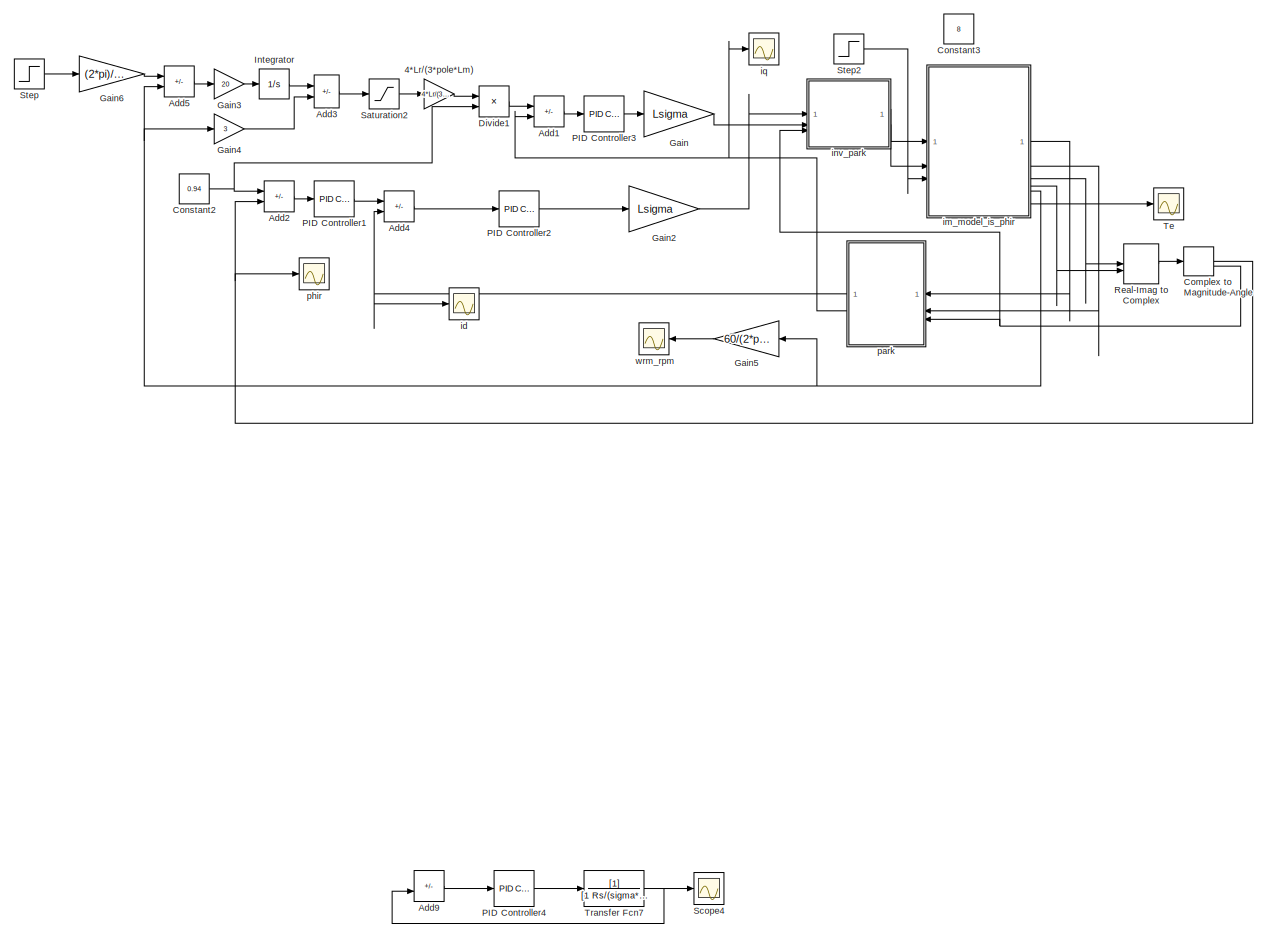
[diagram: root canvas - part 1/1, most of the canvas]
MODEL slx_88a6581c1cbe
KIND model
CONFIG AbsTol = auto
CONFIG EnableMultiTasking = off
CONFIG FixedStep = 0.001
CONFIG MaxStep = auto
CONFIG MinStep = auto
CONFIG RelTol = 1e-3
CONFIG SampleTimeConstraint = Unconstrained
CONFIG SolverName = VariableStepAuto
CONFIG StartTime = 0.0
CONFIG StopTime = 4
BLOCK [Gain] 4*Lr//(3*pole*Lm)
  Gain = 4*Lr/(3*pole*Lm)
  NameLocation = top
BLOCK [Sum] Add1
  IconShape = rectangular
  Inputs = +-
BLOCK [Sum] Add2
  IconShape = rectangular
  Inputs = +-
BLOCK [Sum] Add3
  IconShape = rectangular
  Inputs = +-
BLOCK [Sum] Add4
  IconShape = rectangular
  Inputs = +-
BLOCK [Sum] Add5
  IconShape = rectangular
  Inputs = +-
BLOCK [Sum] Add9
  IconShape = rectangular
  Inputs = +-
BLOCK [ComplexToMagnitudeAngle] Complex to Magnitude-Angle
BLOCK [Constant] Constant2
  Value = 0.94
BLOCK [Constant] Constant3
  Value = 8
BLOCK [Product] Divide1
  Inputs = */
BLOCK [Gain] Gain
  Gain = Lsigma
BLOCK [Gain] Gain2
  Gain = Lsigma
BLOCK [Gain] Gain3
  Gain = 20
BLOCK [Gain] Gain4
  Gain = 3
BLOCK [Gain] Gain5
  Gain = 60/(2*pi)
BLOCK [Gain] Gain6
  Gain = (2*pi)/60
  NameLocation = top
BLOCK [Integrator] Integrator
BLOCK [Reference] PID Controller1  REF=slpidlib/PID Controller
  LibrarySourceBlock = simulink/Continuous/PID Controller
  SourceBlock = slpidlib/PID Controller
  SourceType = PID 1dof
BLOCK [Reference] PID Controller2  REF=slpidlib/PID Controller
  LibrarySourceBlock = simulink/Continuous/PID Controller
  SourceBlock = slpidlib/PID Controller
  SourceType = PID 1dof
BLOCK [Reference] PID Controller3  REF=slpidlib/PID Controller
  LibrarySourceBlock = simulink/Continuous/PID Controller
  SourceBlock = slpidlib/PID Controller
  SourceType = PID 1dof
BLOCK [Reference] PID Controller4  REF=slpidlib/PID Controller
  LibrarySourceBlock = simulink/Continuous/PID Controller
  SourceBlock = slpidlib/PID Controller
  SourceType = PID 1dof
BLOCK [RealImagToComplex] Real-Imag to Complex
BLOCK [Saturate] Saturation2
  LowerLimit = -24
  UpperLimit = 24
BLOCK [Scope] Scope4
  Floating = off
  NumInputPorts = 1
  ScopeSpecificationString = Simulink.scopes.TimeScopeBlockCfg('CurrentConfiguration', extmgr.ConfigurationSet(extmgr.Configuration('Core','General UI',true),extmgr.Configuration('Core','Source UI',true),extmgr.Configuration('Sources','WiredSimulink',true,'DataLoggingVariableName','ScopeData2'),extmgr.Configuration('Visuals','Time Domain',true,'SerializedDisplays',{struct('MinYLimReal','-1.68781','MaxYLimReal','15.19027','YLa...<+1376ch>
BLOCK [Step] Step
  After = 1000
  SampleTime = 0
  Time = 0
BLOCK [Step] Step2
  After = 8
  SampleTime = 0
  Time = 2
BLOCK [Scope] Te
  Floating = off
  NumInputPorts = 1
  ScopeSpecificationString = Simulink.scopes.TimeScopeBlockCfg('CurrentConfiguration', extmgr.ConfigurationSet(extmgr.Configuration('Core','General UI',true,'FigureColor',[1 1 1]),extmgr.Configuration('Core','Source UI',true),extmgr.Configuration('Sources','WiredSimulink',true,'DataLoggingVariableName','ScopeData1'),extmgr.Configuration('Visuals','Time Domain',true,'SerializedDisplays',{struct('MinYLimReal','-3.53995','MaxYLi...<+1577ch>
BLOCK [TransferFcn] Transfer Fcn7
  Denominator = [1 Rs/(sigma*Ls)-(1-sigma)/(sigma*Tr)]
BLOCK [Scope] id
  Floating = off
  NumInputPorts = 1
  ScopeSpecificationString = Simulink.scopes.TimeScopeBlockCfg('CurrentConfiguration', extmgr.ConfigurationSet(extmgr.Configuration('Core','General UI',true,'FigureColor',[1 1 1]),extmgr.Configuration('Core','Source UI',true),extmgr.Configuration('Sources','WiredSimulink',true,'DataLoggingVariableName','ScopeData4'),extmgr.Configuration('Visuals','Time Domain',true,'SerializedDisplays',{struct('MinYLimReal','-1.98517','MaxYLi...<+1542ch>
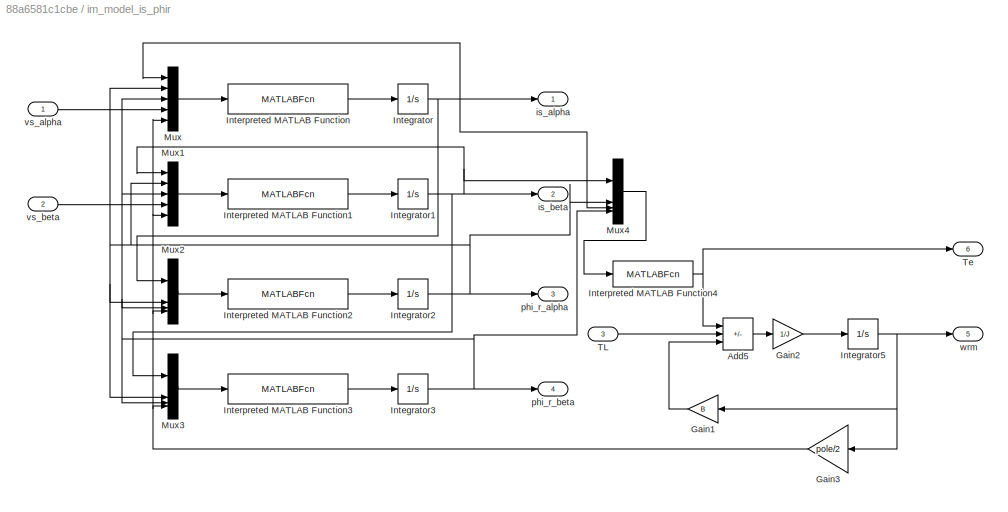
BLOCK [SubSystem] im_model_is_phir
BLOCK [Sum] im_model_is_phir/Add5
  IconShape = rectangular
  Inputs = +--
BLOCK [Gain] im_model_is_phir/Gain1
  Gain = B
BLOCK [Gain] im_model_is_phir/Gain2
  Gain = 1/J
BLOCK [Gain] im_model_is_phir/Gain3
  Gain = pole/2
BLOCK [Integrator] im_model_is_phir/Integrator
BLOCK [Integrator] im_model_is_phir/Integrator1
BLOCK [Integrator] im_model_is_phir/Integrator2
BLOCK [Integrator] im_model_is_phir/Integrator3
BLOCK [Integrator] im_model_is_phir/Integrator5
BLOCK [MATLABFcn] im_model_is_phir/Interpreted MATLAB Function
  MATLABFcn = K1*u(1)+K2*u(2)+K3*u(5)*u(3)+K4*u(4)
BLOCK [MATLABFcn] im_model_is_phir/Interpreted MATLAB Function1
  MATLABFcn = K1*u(1)-K3*u(5)*u(2)+K2*u(3)+K4*u(4)
BLOCK [MATLABFcn] im_model_is_phir/Interpreted MATLAB Function2
  MATLABFcn = K5*u(1)+K6*u(2)-u(4)*u(3)
BLOCK [MATLABFcn] im_model_is_phir/Interpreted MATLAB Function3
  MATLABFcn = K5*u(1)+u(4)*u(2)+K6*u(3)
BLOCK [MATLABFcn] im_model_is_phir/Interpreted MATLAB Function4
  MATLABFcn = (u(1)*u(2)-u(3)*u(4))*3*pole*Lm/(4*Lr)
BLOCK [Mux] im_model_is_phir/Mux
  DisplayOption = bar
  Inputs = 5
BLOCK [Mux] im_model_is_phir/Mux1
  DisplayOption = bar
  Inputs = 5
BLOCK [Mux] im_model_is_phir/Mux2
  DisplayOption = bar
BLOCK [Mux] im_model_is_phir/Mux3
  DisplayOption = bar
BLOCK [Mux] im_model_is_phir/Mux4
  DisplayOption = bar
BLOCK [Inport] im_model_is_phir/TL
  Port = 3
BLOCK [Outport] im_model_is_phir/Te
  Port = 6
BLOCK [Outport] im_model_is_phir/is_alpha
BLOCK [Outport] im_model_is_phir/is_beta
  Port = 2
BLOCK [Outport] im_model_is_phir/phi_r_alpha
  Port = 3
BLOCK [Outport] im_model_is_phir/phi_r_beta
  Port = 4
BLOCK [Inport] im_model_is_phir/vs_alpha
BLOCK [Inport] im_model_is_phir/vs_beta
  Port = 2
BLOCK [Outport] im_model_is_phir/wrm
  Port = 5
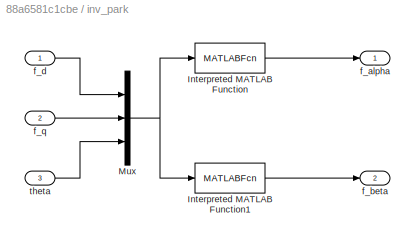
BLOCK [SubSystem] inv_park
BLOCK [MATLABFcn] inv_park/Interpreted MATLAB Function
  MATLABFcn = cos(u(3))*u(1)-sin(u(3))*u(2)
BLOCK [MATLABFcn] inv_park/Interpreted MATLAB Function1
  MATLABFcn = sin(u(3))*u(1)+cos(u(3))*u(2)
BLOCK [Mux] inv_park/Mux
  DisplayOption = bar
  Inputs = 3
BLOCK [Outport] inv_park/f_alpha
BLOCK [Outport] inv_park/f_beta
  Port = 2
BLOCK [Inport] inv_park/f_d
BLOCK [Inport] inv_park/f_q
  Port = 2
BLOCK [Inport] inv_park/theta
  Port = 3
BLOCK [Scope] iq
  Floating = off
  NumInputPorts = 1
  ScopeSpecificationString = Simulink.scopes.TimeScopeBlockCfg('CurrentConfiguration', extmgr.ConfigurationSet(extmgr.Configuration('Core','General UI',true,'FigureColor',[1 1 1]),extmgr.Configuration('Core','Source UI',true),extmgr.Configuration('Sources','WiredSimulink',true,'DataLoggingVariableName','ScopeData1'),extmgr.Configuration('Visuals','Time Domain',true,'SerializedDisplays',{struct('MinYLimReal','-5.69164','MaxYLi...<+1565ch>
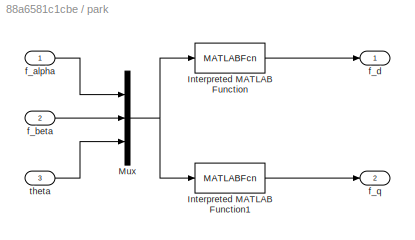
BLOCK [SubSystem] park
BLOCK [MATLABFcn] park/Interpreted MATLAB Function
  MATLABFcn = cos(u(3))*u(1)+sin(u(3))*u(2)
BLOCK [MATLABFcn] park/Interpreted MATLAB Function1
  MATLABFcn = -sin(u(3))*u(1)+cos(u(3))*u(2)
BLOCK [Mux] park/Mux
  DisplayOption = bar
  Inputs = 3
BLOCK [Inport] park/f_alpha
BLOCK [Inport] park/f_beta
  Port = 2
BLOCK [Outport] park/f_d
BLOCK [Outport] park/f_q
  Port = 2
BLOCK [Inport] park/theta
  Port = 3
BLOCK [Scope] phir
  Floating = off
  NumInputPorts = 1
  ScopeSpecificationString = Simulink.scopes.TimeScopeBlockCfg('CurrentConfiguration', extmgr.ConfigurationSet(extmgr.Configuration('Core','General UI',true,'FigureColor',[1 1 1]),extmgr.Configuration('Core','Source UI',true),extmgr.Configuration('Sources','WiredSimulink',true,'DataLoggingVariableName','ScopeData2'),extmgr.Configuration('Visuals','Time Domain',true,'SerializedDisplays',{struct('MinYLimReal','-0.11749','MaxYLi...<+1564ch>
BLOCK [Scope] wrm_rpm
  Floating = off
  NameLocation = top
  NumInputPorts = 1
  ScopeSpecificationString = Simulink.scopes.TimeScopeBlockCfg('CurrentConfiguration', extmgr.ConfigurationSet(extmgr.Configuration('Core','General UI',true,'FigureColor',[1 1 1]),extmgr.Configuration('Core','Source UI',true),extmgr.Configuration('Sources','WiredSimulink',true),extmgr.Configuration('Visuals','Time Domain',true,'SerializedDisplays',{struct('MinYLimReal','969.39804','MaxYLimReal','1022.35507','YLabelReal','','M...<+1536ch>
LINE 4*Lr//(3*pole*Lm):1 -> Divide1:1
LINE Add1:1 -> PID Controller3:1
LINE Add2:1 -> PID Controller1:1
LINE Add3:1 -> Saturation2:1
LINE Add4:1 -> PID Controller2:1
LINE Add5:1 -> Gain3:1
LINE Add9:1 -> PID Controller4:1
NET Complex to Magnitude-Angle:1 -> Add2:2, phir:1
NET Complex to Magnitude-Angle:2 -> inv_park:3, park:3
NET Constant2:1 -> Add2:1, Divide1:2
LINE Divide1:1 -> Add1:1
LINE Gain2:1 -> inv_park:1
LINE Gain3:1 -> Integrator:1
LINE Gain4:1 -> Add3:2
LINE Gain5:1 -> wrm_rpm:1
LINE Gain6:1 -> Add5:1
LINE Gain:1 -> inv_park:2
LINE Integrator:1 -> Add3:1
LINE PID Controller1:1 -> Add4:1
LINE PID Controller2:1 -> Gain2:1
LINE PID Controller3:1 -> Gain:1
LINE PID Controller4:1 -> Transfer Fcn7:1
LINE Real-Imag to Complex:1 -> Complex to Magnitude-Angle:1
LINE Saturation2:1 -> 4*Lr//(3*pole*Lm):1
LINE Step2:1 -> im_model_is_phir:3
LINE Step:1 -> Gain6:1
NET Transfer Fcn7:1 -> Add9:2, Scope4:1
LINE im_model_is_phir/Add5:1 -> im_model_is_phir/Gain2:1
LINE im_model_is_phir/Gain1:1 -> im_model_is_phir/Add5:3
LINE im_model_is_phir/Gain2:1 -> im_model_is_phir/Integrator5:1
NET im_model_is_phir/Gain3:1 -> im_model_is_phir/Mux1:5, im_model_is_phir/Mux2:4, im_model_is_phir/Mux3:4, im_model_is_phir/Mux:5
NET im_model_is_phir/Integrator1:1 -> im_model_is_phir/Mux1:1, im_model_is_phir/Mux3:1, im_model_is_phir/Mux4:1, im_model_is_phir/is_beta:1
NET im_model_is_phir/Integrator2:1 -> im_model_is_phir/Mux1:2, im_model_is_phir/Mux2:2, im_model_is_phir/Mux3:2, im_model_is_phir/Mux4:2, im_model_is_phir/Mux:2, im_model_is_phir/phi_r_alpha:1
NET im_model_is_phir/Integrator3:1 -> im_model_is_phir/Mux1:3, im_model_is_phir/Mux2:3, im_model_is_phir/Mux3:3, im_model_is_phir/Mux4:4, im_model_is_phir/Mux:3, im_model_is_phir/phi_r_beta:1
NET im_model_is_phir/Integrator5:1 -> im_model_is_phir/Gain1:1, im_model_is_phir/Gain3:1, im_model_is_phir/wrm:1
NET im_model_is_phir/Integrator:1 -> im_model_is_phir/Mux2:1, im_model_is_phir/Mux4:3, im_model_is_phir/Mux:1, im_model_is_phir/is_alpha:1
LINE im_model_is_phir/Interpreted MATLAB Function1:1 -> im_model_is_phir/Integrator1:1
LINE im_model_is_phir/Interpreted MATLAB Function2:1 -> im_model_is_phir/Integrator2:1
LINE im_model_is_phir/Interpreted MATLAB Function3:1 -> im_model_is_phir/Integrator3:1
NET im_model_is_phir/Interpreted MATLAB Function4:1 -> im_model_is_phir/Add5:1, im_model_is_phir/Te:1
LINE im_model_is_phir/Interpreted MATLAB Function:1 -> im_model_is_phir/Integrator:1
LINE im_model_is_phir/Mux1:1 -> im_model_is_phir/Interpreted MATLAB Function1:1
LINE im_model_is_phir/Mux2:1 -> im_model_is_phir/Interpreted MATLAB Function2:1
LINE im_model_is_phir/Mux3:1 -> im_model_is_phir/Interpreted MATLAB Function3:1
LINE im_model_is_phir/Mux4:1 -> im_model_is_phir/Interpreted MATLAB Function4:1
LINE im_model_is_phir/Mux:1 -> im_model_is_phir/Interpreted MATLAB Function:1
LINE im_model_is_phir/TL:1 -> im_model_is_phir/Add5:2
LINE im_model_is_phir/vs_alpha:1 -> im_model_is_phir/Mux:4
LINE im_model_is_phir/vs_beta:1 -> im_model_is_phir/Mux1:4
LINE im_model_is_phir:1 -> park:1
LINE im_model_is_phir:2 -> park:2
LINE im_model_is_phir:3 -> Real-Imag to Complex:1
LINE im_model_is_phir:4 -> Real-Imag to Complex:2
NET im_model_is_phir:5 -> Add5:2, Gain4:1, Gain5:1
LINE im_model_is_phir:6 -> Te:1
LINE inv_park/Interpreted MATLAB Function1:1 -> inv_park/f_beta:1
LINE inv_park/Interpreted MATLAB Function:1 -> inv_park/f_alpha:1
NET inv_park/Mux:1 -> inv_park/Interpreted MATLAB Function1:1, inv_park/Interpreted MATLAB Function:1
LINE inv_park/f_d:1 -> inv_park/Mux:1
LINE inv_park/f_q:1 -> inv_park/Mux:2
LINE inv_park/theta:1 -> inv_park/Mux:3
LINE inv_park:1 -> im_model_is_phir:1
LINE inv_park:2 -> im_model_is_phir:2
LINE park/Interpreted MATLAB Function1:1 -> park/f_q:1
LINE park/Interpreted MATLAB Function:1 -> park/f_d:1
NET park/Mux:1 -> park/Interpreted MATLAB Function1:1, park/Interpreted MATLAB Function:1
LINE park/f_alpha:1 -> park/Mux:1
LINE park/f_beta:1 -> park/Mux:2
LINE park/theta:1 -> park/Mux:3
NET park:1 -> Add4:2, id:1
NET park:2 -> Add1:2, iq:1
note: NET lines group one-source signal fan-out (src -> all destinations, sorted); 1:1 wires keep LINE
